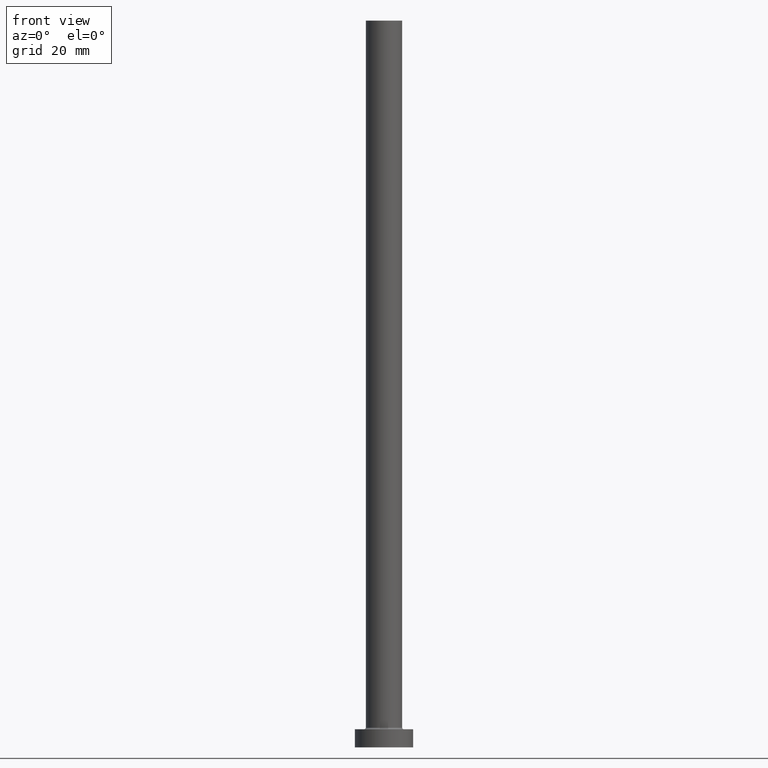
[diagram: clean part render]
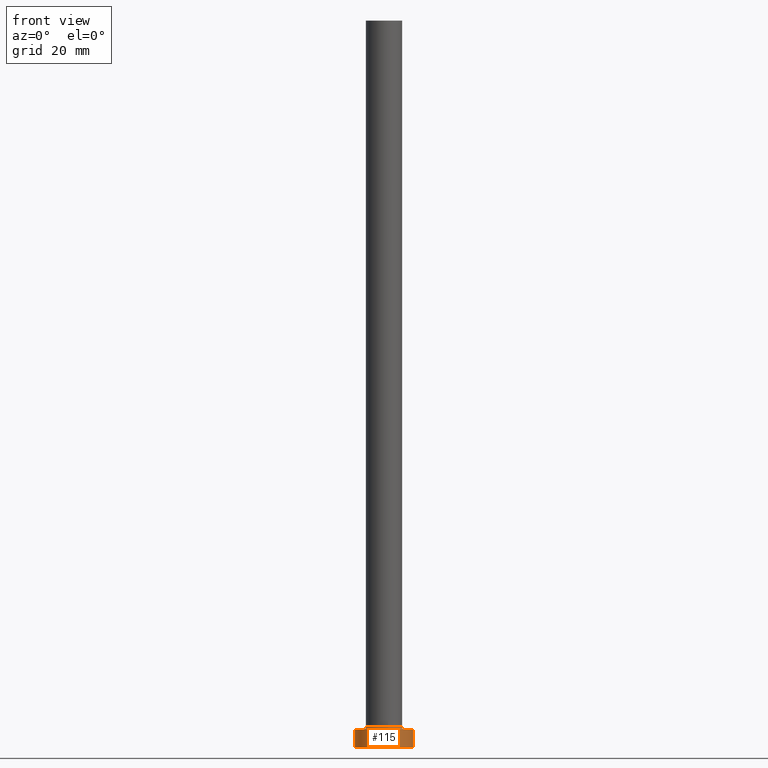
[diagram: same view with one face highlighted and labeled with its STEP entity id]
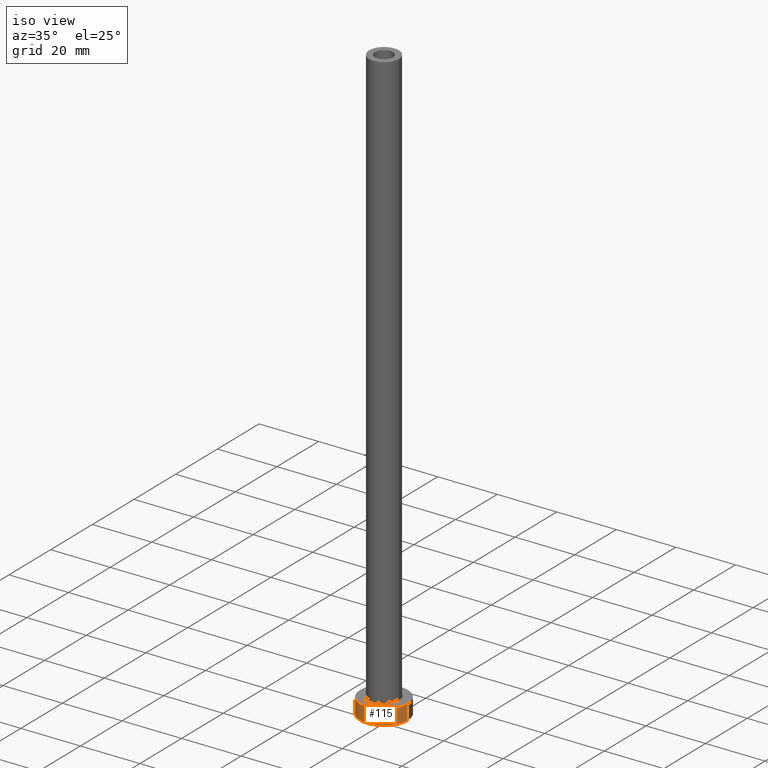
[diagram: same view with one face highlighted and labeled with its STEP entity id]
A machine part, front view. The second image highlights one B-rep face of the part: STEP entity #115.
A second angle (iso view) of the same face is appended — the face is thin or edge-on in the first view.
In plain terms, the highlighted cylindrical surface (edge-blend (fillet) strip) has radius 8 mm, axis along (-0, -0, -1).
Its self-contained STEP definition (entity closure, byte-faithful):
#5 = CYLINDRICAL_SURFACE ( 'NONE', #429, 8.000000000000000000 ) ;
#8 = DIRECTION ( 'NONE',  ( -0.000000000000000000, -0.000000000000000000, -1.000000000000000000 ) ) ;
#11 = DIRECTION ( 'NONE',  ( -0.000000000000000000, -0.000000000000000000, -1.000000000000000000 ) ) ;
#14 = EDGE_LOOP ( 'NONE', ( #96, #445, #376, #342 ) ) ;
#23 = CARTESIAN_POINT ( 'NONE',  ( -8.000000000000000000, 0.000000000000000000, 0.000000000000000000 ) ) ;
#35 = AXIS2_PLACEMENT_3D ( 'NONE', #261, #86, #169 ) ;
#41 = EDGE_CURVE ( 'NONE', #231, #79, #201, .T. ) ;
#48 = FACE_OUTER_BOUND ( 'NONE', #14, .T. ) ;
#52 = DIRECTION ( 'NONE',  ( -1.000000000000000000, 0.000000000000000000, 0.000000000000000000 ) ) ;
#79 = VERTEX_POINT ( 'NONE', #100 ) ;
#85 = EDGE_CURVE ( 'NONE', #408, #451, #457, .T. ) ;
#86 = DIRECTION ( 'NONE',  ( 0.000000000000000000, 0.000000000000000000, 1.000000000000000000 ) ) ;
#96 = ORIENTED_EDGE ( 'NONE', *, *, #159, .F. ) ;
#100 = CARTESIAN_POINT ( 'NONE',  ( 8.000000000000000000, 9.797174393178825657E-16, 0.000000000000000000 ) ) ;
#115 = ADVANCED_FACE ( 'NONE', ( #48 ), #5, .T. ) ;
#117 = CARTESIAN_POINT ( 'NONE',  ( -8.000000000000000000, 0.000000000000000000, 5.000000000000000000 ) ) ;
#145 = VECTOR ( 'NONE', #11, 1000.000000000000000 ) ;
#159 = EDGE_CURVE ( 'NONE', #451, #79, #335, .T. ) ;
#165 = CARTESIAN_POINT ( 'NONE',  ( 8.000000000000000000, 9.797174393178825657E-16, 5.000000000000000000 ) ) ;
#169 = DIRECTION ( 'NONE',  ( 1.000000000000000000, 0.000000000000000000, 0.000000000000000000 ) ) ;
#181 = EDGE_CURVE ( 'NONE', #408, #231, #257, .T. ) ;
#189 = CARTESIAN_POINT ( 'NONE',  ( 0.000000000000000000, 0.000000000000000000, 0.000000000000000000 ) ) ;
#201 = CIRCLE ( 'NONE', #250, 8.000000000000000000 ) ;
#218 = VECTOR ( 'NONE', #8, 1000.000000000000000 ) ;
#231 = VERTEX_POINT ( 'NONE', #23 ) ;
#250 = AXIS2_PLACEMENT_3D ( 'NONE', #189, #291, #317 ) ;
#257 = LINE ( 'NONE', #292, #218 ) ;
#261 = CARTESIAN_POINT ( 'NONE',  ( 0.000000000000000000, 0.000000000000000000, 5.000000000000000000 ) ) ;
#291 = DIRECTION ( 'NONE',  ( 0.000000000000000000, 0.000000000000000000, 1.000000000000000000 ) ) ;
#292 = CARTESIAN_POINT ( 'NONE',  ( -8.000000000000000000, 0.000000000000000000, 5.000000000000000000 ) ) ;
#294 = DIRECTION ( 'NONE',  ( -0.000000000000000000, -0.000000000000000000, -1.000000000000000000 ) ) ;
#317 = DIRECTION ( 'NONE',  ( 1.000000000000000000, 0.000000000000000000, 0.000000000000000000 ) ) ;
#335 = LINE ( 'NONE', #336, #145 ) ;
#336 = CARTESIAN_POINT ( 'NONE',  ( 8.000000000000000000, 9.797174393178825657E-16, 5.000000000000000000 ) ) ;
#342 = ORIENTED_EDGE ( 'NONE', *, *, #41, .T. ) ;
#364 = CARTESIAN_POINT ( 'NONE',  ( 0.000000000000000000, 0.000000000000000000, 5.000000000000000000 ) ) ;
#376 = ORIENTED_EDGE ( 'NONE', *, *, #181, .T. ) ;
#408 = VERTEX_POINT ( 'NONE', #117 ) ;
#429 = AXIS2_PLACEMENT_3D ( 'NONE', #364, #294, #52 ) ;
#445 = ORIENTED_EDGE ( 'NONE', *, *, #85, .F. ) ;
#451 = VERTEX_POINT ( 'NONE', #165 ) ;
#457 = CIRCLE ( 'NONE', #35, 8.000000000000000000 ) ;